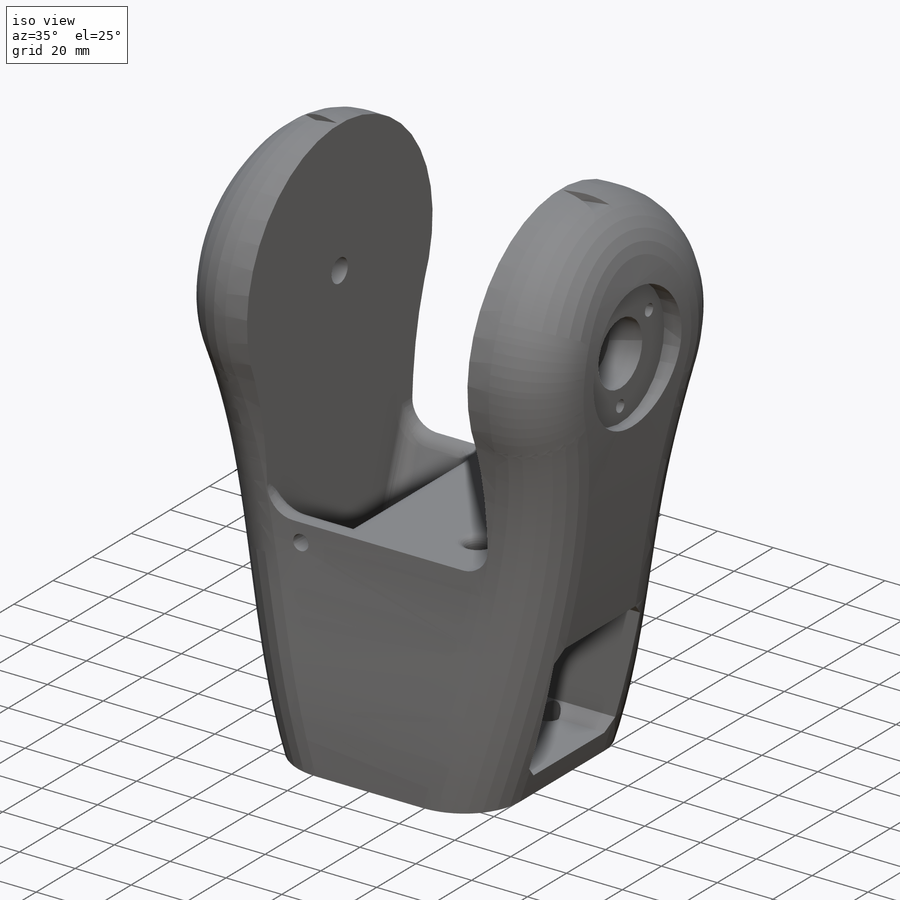
[diagram: iso view]
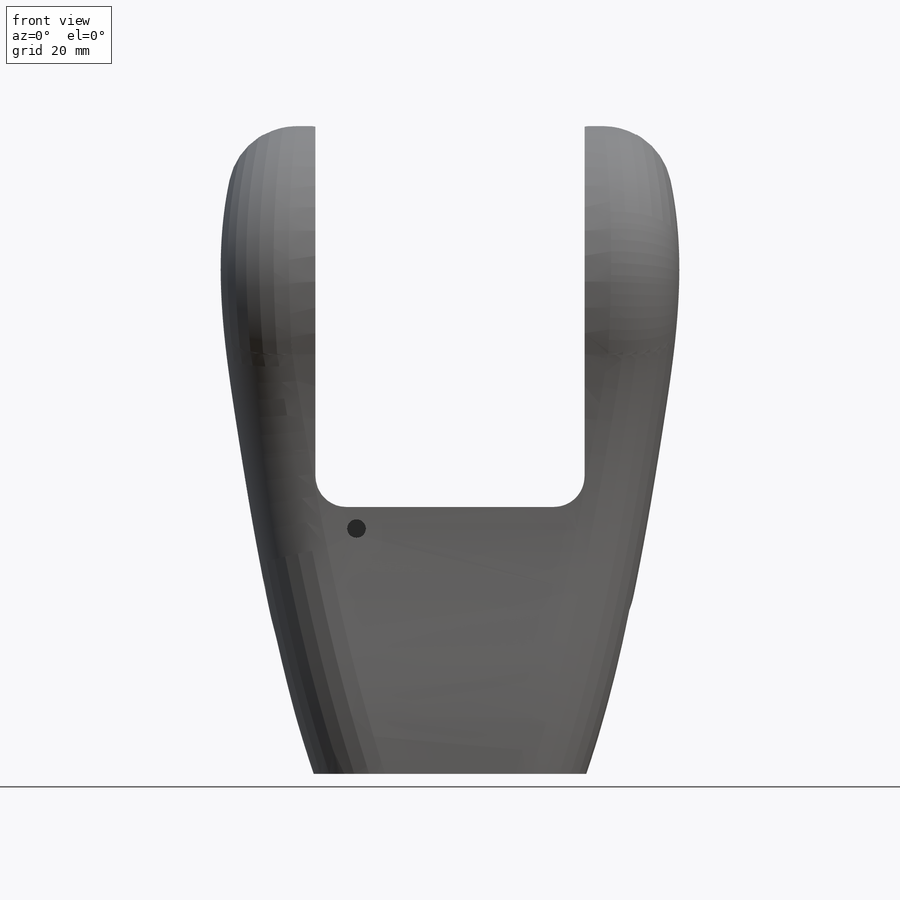
[diagram: front view]
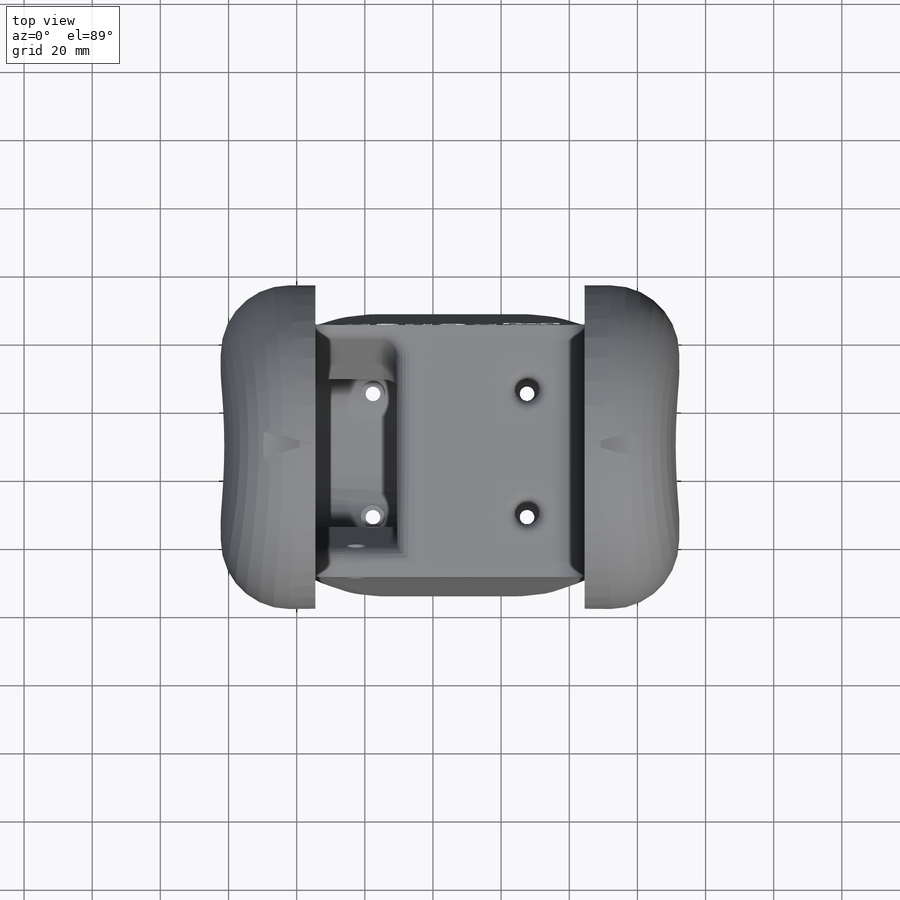
[diagram: top view]
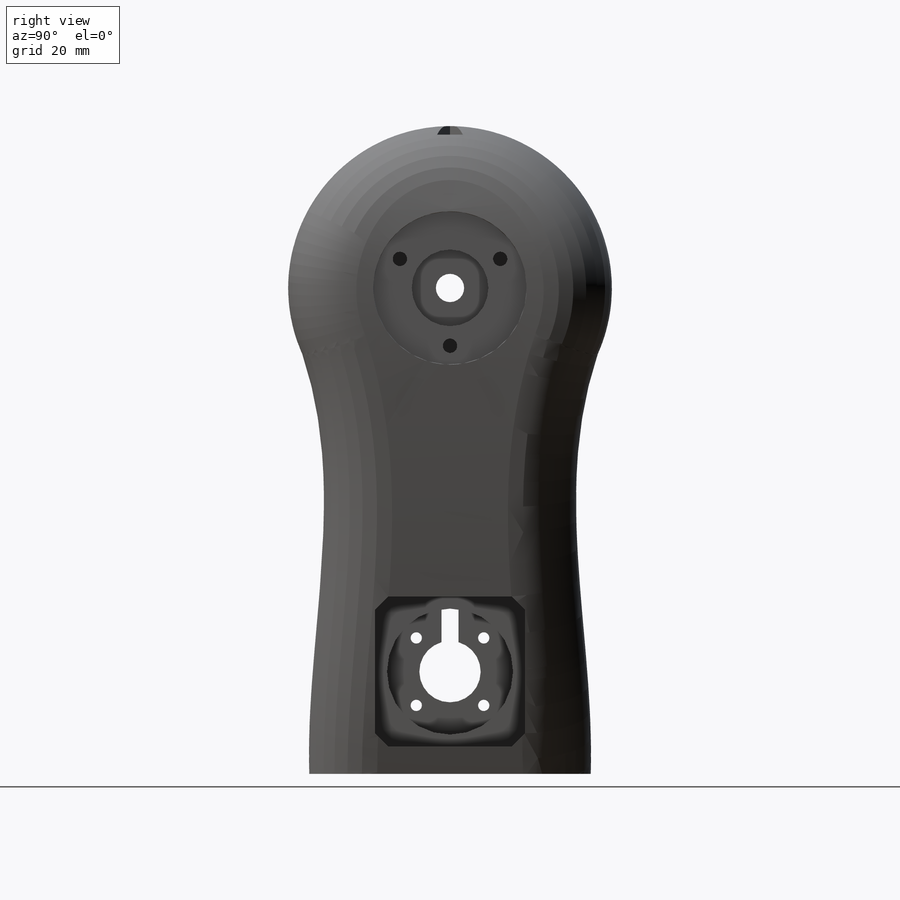
[diagram: right view]
SOLIDWORKS PART (.sldprt)
format: sldprt  version: not decoded by parser v0  size: 4,753,920 bytes
history: native  units: mm
features: sketch x39, cut_extrude x33, fillet x14, plane x7, extrude x5, material x1, mirror x1 (+9 scaffold rows collapsed)
feature tree (109):
  scaffold x9  (default folders/planes/origin — collapsed)
  material  "Material <sin especificar>"
  plane  "Alzado"
  plane  "Planta"
  plane  "Vista lateral"
  sketch  "Croquis1"  dims[c1.D4=8.3mm c1.D5=95.0mm c1.D1=95.0mm c1.D2=22.5mm c2.D1=190.0mm c2.D2=95.0mm c2.D3=142.6mm c2.D6=4.5mm c2.D7=4.5mm c3.D1=190.0mm c3.D2=82.6mm c3.D3=6.2mm c3.D5=95.0mm c4.D2=6.2mm c4.D3=6.2mm c4.D5=10.5mm c4.D6=10.5mm]
  extrude  "Saliente-Extruir2"  Depth=130mm
  sketch  "Croquis2"  dims[c1.D1=79.0mm c1.D2=25.5mm c1.D3=86.76mm c1.D4=8.0mm c1.D5=80.0mm c2.D2=25.5mm c2.D5=86.76mm c3.D2=94.76mm c3.D3=79.0mm c4.D2=79.0mm c4.D1=15.0mm c5.D2=15.0mm c5.D3=15.0mm c5.D4=4.0mm c5.D5=10.0mm c6.D4=10.0mm c6.D6=4.0mm c6.D7=4.0mm c6.D1=5.0mm c7.D4=5.0mm c7.D5=80.0mm c7.D6=25.0mm]
  sketch  "Croquis3"  dims[c1.D6=22.5mm c1.D1=44.0mm c1.D2=44.0mm c2.D2=90.0deg c3.D2=8.0mm c3.D3=25.5mm c3.D4=44.0mm c3.D5=5.5mm c3.D7=3.5mm c3.D8=3.5mm c3.D9=3.5mm c4.D4=0.0mm]
  sketch  "Croquis6"  dims[c1.D4=22.5mm c1.D1=8.0mm c1.D2=44.0mm c1.D3=25.5mm c2.D4=51.0mm]
  cut_extrude  "Cortar-Extruir24"  Depth=38.5mm
  cut_extrude  "Cortar-Extruir33"  [1 undecoded]
  sketch  "Croquis6<3>"  dims[D1=49.5mm]
  sketch  "Croquis10"  dims[D1=24.0mm]
  cut_extrude  "Cortar-Extruir34"  Depth=49.5mm
  cut_extrude  "Cortar-Extruir35"  Depth=71.5mm
  sketch  "Croquis11"  dims[c1.D4=3.3mm c1.D5=3.3mm c1.D6=3.3mm c2.D4=37.0mm c2.D1=31.0mm c2.D2=6.5mm c2.D3=6.5mm c2.D5=19.8mm c2.D6=~14.266644mm c2.D7=19.8mm]
  cut_extrude  "Cortar-Extruir40"  [1 undecoded]
  sketch  "Croquis1<18>"  dims[D1=150.0mm]
  sketch  "Croquis20"  dims[D1=22.5mm]
  cut_extrude  "Cortar-Extruir66"  Depth=15mm
  plane  "Plano1"  Offset=10mm
  cut_extrude  "Cortar-Extruir49"  Depth=150mm
  extrude  "Saliente-Extruir7"  [1 undecoded]
  sketch  "Croquis2<20>"  dims[D1=95.0mm]
  cut_extrude  "Cortar-Extruir58"  [1 undecoded]
  sketch  "Croquis1<31>"  dims[D1=150.0mm]
  cut_extrude  "Cortar-Extruir59"  [1 undecoded]
  sketch  "Croquis1<32>"  dims[D1=150.0mm]
  sketch  "Croquis16"  dims[D1=37.34mm]
  cut_extrude  "Cortar-Extruir60"  Depth=150mm
  sketch  "Croquis17"  dims[D1=37.34mm]
  cut_extrude  "Cortar-Extruir61"  Depth=150mm
  sketch  "Croquis22"  dims[c1.D2=7.2mm c1.D3=7.2mm c1.D5=7.2mm c1.D6=7.2mm c1.D4=7.2mm c2.D5=7.2mm c2.D1=20.0mm c2.D4=20.0mm c3.D1=20.0mm c3.D4=20.0mm c3.D6=20.0mm]
  cut_extrude  "Cortar-Extruir78"  Depth=4.3mm
  sketch  "Croquis24"  dims[D1=4.3mm]
  cut_extrude  "Cortar-Extruir79"  Depth=10mm
  sketch  "Croquis18"  dims[c1.D1=5.0mm c1.D2=5.0mm c2.D1=8.0mm c2.D2=0.0mm]
  extrude  "Saliente-Extruir10"  Depth=24mm
  cut_extrude  "Cortar-Extruir62"  [1 undecoded]
  sketch  "Croquis3<8>"  dims[D1=10.0mm]
  cut_extrude  "Cortar-Extruir63"  [1 undecoded]
  sketch  "Croquis3<9>"  dims[D1=20.0mm]
  sketch  "Croquis21"
  cut_extrude  "Cortar-Extruir68"  Depth=30mm
  cut_extrude  "Cortar-Extruir71"  [1 undecoded]
  sketch  "Croquis3<12>"  dims[D1=15.63mm]
  fillet  "Redondeo121"  Radius=20mm
  fillet  "Redondeo122"  Radius=20mm
  fillet  "Redondeo123"  Radius=20mm
  sketch  "Croquis26"  dims[D1=~18.110913mm]
  extrude  "Saliente-Extruir9"  Depth=19mm
  cut_extrude  "Cortar-Extruir80"  [1 undecoded]
  sketch  "Croquis11<4>"  dims[D1=19.0mm]
  sketch  "Croquis27"  dims[D1=6.0mm]
  cut_extrude  "Cortar-Extruir81"  Depth=3.5mm
  sketch  "Croquis28"  dims[D1=18.0mm D2=~28.001429mm]
  cut_extrude  "Cortar-Extruir82"  Depth=23.5mm
  cut_extrude  "Cortar-Extruir83"  [1 undecoded]
  sketch  "Croquis11<5>"  dims[D1=2.0mm]
  fillet  "Redondeo132"  Radius=9mm
  fillet  "Redondeo136"  Radius=9mm
  fillet  "Redondeo137"  Radius=15mm
  sketch  "Croquis30"  dims[c1.D5=3.3mm c1.D1=17.0mm c1.D2=20.5mm c1.D4=5.9mm c2.D1=19.5mm c2.D2=22.5mm c2.D3=0.0mm]
  cut_extrude  "Cortar-Extruir87"  [1 undecoded]
  sketch  "Croquis30<4>"  dims[D1=6.0mm]
  cut_extrude  "Cortar-Extruir91"  Depth=43.5mm
  sketch  "Croquis33"  dims[D1=6.0mm]
  cut_extrude  "Cortar-Extruir95"  [1 undecoded]
  sketch  "Croquis30<9>"  dims[D1=3.0mm]
  fillet  "Redondeo141"  Radius=5mm
  fillet  "Redondeo142"  Radius=5mm
  fillet  "Redondeo143"  Radius=5mm
  sketch  "Croquis34"  dims[D2=5.5mm D1=8.0mm]
  cut_extrude  "Cortar-Extruir96"  [1 undecoded]
  cut_extrude  "Cortar-Extruir97"  Depth=23mm
  extrude  "Saliente-Extruir14"  [1 undecoded]
  sketch  "Croquis33<6>"  dims[D1=9.0mm]
  cut_extrude  "Cortar-Extruir98"  [1 undecoded]
  sketch  "Croquis30<11>"  dims[D1=39.0mm]
  sketch  "Croquis35"  dims[D1=45.0mm]
  cut_extrude  "Cortar-Extruir99"  Depth=14mm
  sketch  "Croquis36"  dims[c1.D4=4.2mm c1.D1=22.5mm c2.D1=45.0deg c2.D2=5.5mm c2.D3=5.5mm c3.D1=~15.909903mm c4.D1=120.0deg]
  cut_extrude  "Cortar-Extruir100"  Depth=15mm
  plane  "Plano2"
  mirror  "Simetría1"
  sketch  "Croquis37"  dims[D1=5.0mm D2=15.0mm D3=5.0mm]
  cut_extrude  "Cortar-Extruir101"  Depth=7mm
  fillet  "Redondeo144"  Radius=10mm
  plane  "Plano3"
  sketch  "Croquis38"  dims[c1.D1=1.0mm c1.D2=~25.195454mm c2.D2=15.0deg c2.D3=~18.850705mm c3.D3=165.0deg c4.D3=15.0mm]
  cut_extrude  "Cortar-Extruir102"  Depth=2.5mm
  sketch  "Croquis39"
  cut_extrude  "Cortar-Extruir103"  Depth=90mm
  fillet  "Redondeo145"  Radius=3mm
  plane  "Plano4"  Offset=100mm
  sketch  "Croquis40"
  cut_extrude  "Cortar-Extruir105"  Depth=1mm
  fillet  "Redondeo146"  Radius=0.25mm
  fillet  "Redondeo147"  Radius=0.25mm
  fillet  "Redondeo148"  Radius=0.25mm
decode coverage: 73 of 92 modeling features carry decoded parameters
note: ~ marks probable driven/reference dimensions
note: 15 parameter values undecoded
summary: no parameter record found for 15 features
note: suppression state not decoded; provenance and decode notes live in map.json
